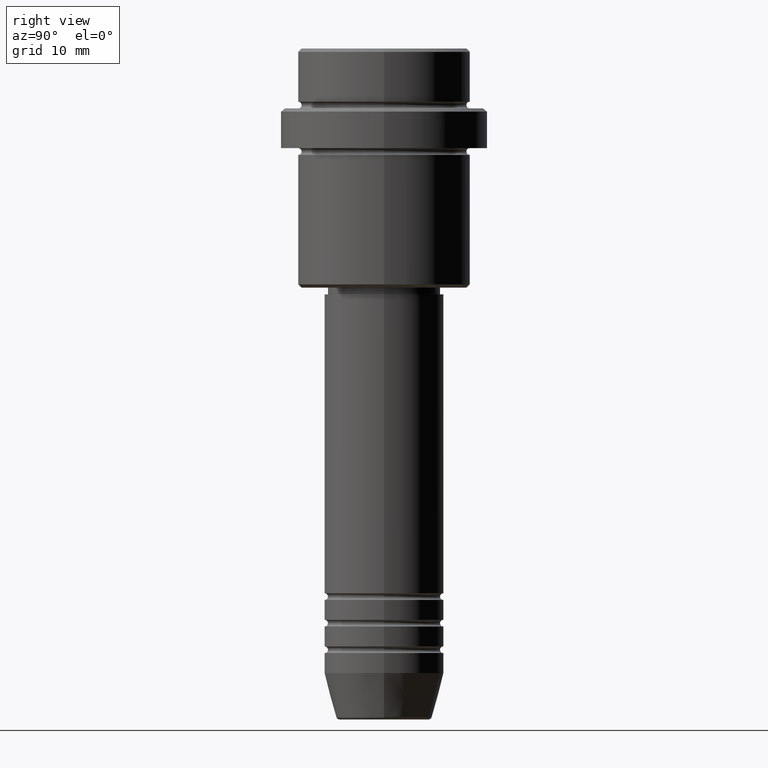
[diagram: clean part render]
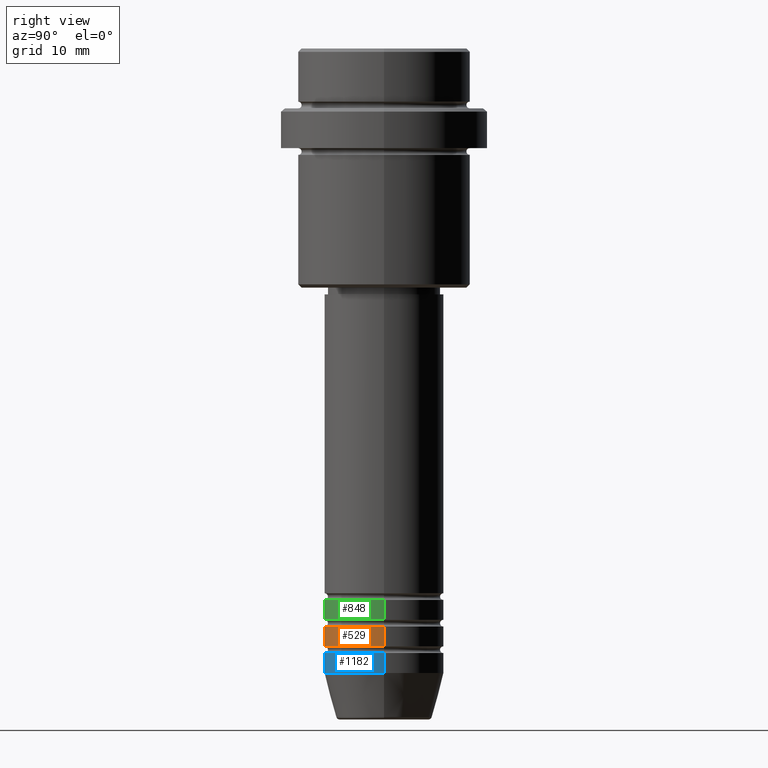
[diagram: same view with three faces highlighted in distinct colors, each labeled with its STEP entity id]
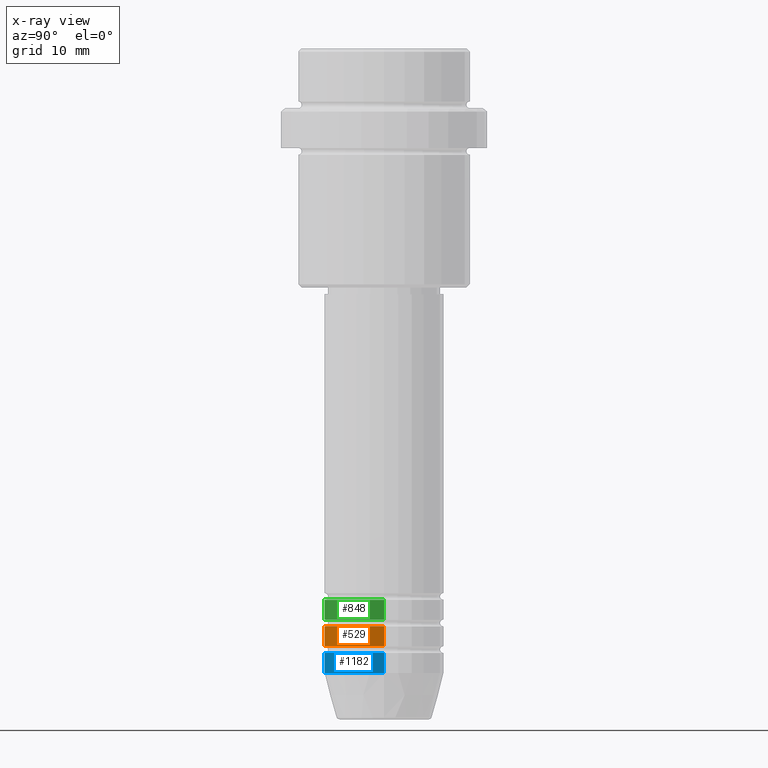
[diagram: x-ray of the same camera — body ghosted, the three highlighted faces saturated]
A machine part, right view with three faces highlighted in distinct colors.
The next image is the same camera in x-ray (body ghosted, the three faces saturated) — at least one of them is partly hidden behind the body in this view.
Their STEP definitions:

[orange] entity #529 — the highlighted cylindrical surface (partial cylindrical patch) has radius 9 mm, axis along (-0, -0, 1).
#34 = EDGE_CURVE ( 'NONE', #860, #1094, #196, .T. ) ;
#161 = DIRECTION ( 'NONE',  ( -0.000000000000000000, -0.000000000000000000, 1.000000000000000000 ) ) ;
#177 = CARTESIAN_POINT ( 'NONE',  ( 9.000000000000000000, 0.000000000000000000, -89.99999999999988631 ) ) ;
#180 = ORIENTED_EDGE ( 'NONE', *, *, #1220, .T. ) ;
#196 = CIRCLE ( 'NONE', #576, 9.000000000000000000 ) ;
#225 = DIRECTION ( 'NONE',  ( 1.000000000000000000, 0.000000000000000000, 0.000000000000000000 ) ) ;
#230 = DIRECTION ( 'NONE',  ( -0.000000000000000000, -0.000000000000000000, 1.000000000000000000 ) ) ;
#256 = DIRECTION ( 'NONE',  ( -0.000000000000000000, -0.000000000000000000, 1.000000000000000000 ) ) ;
#364 = DIRECTION ( 'NONE',  ( 1.000000000000000000, 0.000000000000000000, 0.000000000000000000 ) ) ;
#388 = CARTESIAN_POINT ( 'NONE',  ( 0.000000000000000000, 0.000000000000000000, -86.99999999999988631 ) ) ;
#430 = AXIS2_PLACEMENT_3D ( 'NONE', #664, #230, #225 ) ;
#431 = CIRCLE ( 'NONE', #430, 9.000000000000000000 ) ;
#438 = CYLINDRICAL_SURFACE ( 'NONE', #1082, 9.000000000000000000 ) ;
#529 = ADVANCED_FACE ( 'NONE', ( #1411 ), #438, .T. ) ;
#563 = CARTESIAN_POINT ( 'NONE',  ( -9.000000000000000000, 1.102182119232617714E-15, 0.000000000000000000 ) ) ;
#564 = EDGE_CURVE ( 'NONE', #1047, #1094, #569, .T. ) ;
#569 = LINE ( 'NONE', #1335, #574 ) ;
#574 = VECTOR ( 'NONE', #256, 1000.000000000000000 ) ;
#576 = AXIS2_PLACEMENT_3D ( 'NONE', #388, #161, #364 ) ;
#592 = CARTESIAN_POINT ( 'NONE',  ( -9.000000000000000000, 1.102182119232617714E-15, -89.99999999999988631 ) ) ;
#664 = CARTESIAN_POINT ( 'NONE',  ( 0.000000000000000000, 0.000000000000000000, -89.99999999999988631 ) ) ;
#758 = DIRECTION ( 'NONE',  ( -0.000000000000000000, -0.000000000000000000, 1.000000000000000000 ) ) ;
#788 = EDGE_CURVE ( 'NONE', #915, #860, #1334, .T. ) ;
#859 = CARTESIAN_POINT ( 'NONE',  ( 9.000000000000000000, 0.000000000000000000, -86.99999999999988631 ) ) ;
#860 = VERTEX_POINT ( 'NONE', #998 ) ;
#866 = ORIENTED_EDGE ( 'NONE', *, *, #564, .T. ) ;
#870 = CARTESIAN_POINT ( 'NONE',  ( 0.000000000000000000, 0.000000000000000000, 0.000000000000000000 ) ) ;
#915 = VERTEX_POINT ( 'NONE', #592 ) ;
#932 = ORIENTED_EDGE ( 'NONE', *, *, #34, .F. ) ;
#998 = CARTESIAN_POINT ( 'NONE',  ( -9.000000000000000000, 1.102182119232617714E-15, -86.99999999999988631 ) ) ;
#1009 = DIRECTION ( 'NONE',  ( -0.000000000000000000, -0.000000000000000000, 1.000000000000000000 ) ) ;
#1047 = VERTEX_POINT ( 'NONE', #177 ) ;
#1082 = AXIS2_PLACEMENT_3D ( 'NONE', #870, #758, #1201 ) ;
#1094 = VERTEX_POINT ( 'NONE', #859 ) ;
#1201 = DIRECTION ( 'NONE',  ( 1.000000000000000000, 0.000000000000000000, 0.000000000000000000 ) ) ;
#1220 = EDGE_CURVE ( 'NONE', #915, #1047, #431, .T. ) ;
#1287 = EDGE_LOOP ( 'NONE', ( #1396, #180, #866, #932 ) ) ;
#1334 = LINE ( 'NONE', #563, #1382 ) ;
#1335 = CARTESIAN_POINT ( 'NONE',  ( 9.000000000000000000, 0.000000000000000000, 0.000000000000000000 ) ) ;
#1382 = VECTOR ( 'NONE', #1009, 1000.000000000000000 ) ;
#1396 = ORIENTED_EDGE ( 'NONE', *, *, #788, .F. ) ;
#1411 = FACE_OUTER_BOUND ( 'NONE', #1287, .T. ) ;

[blue] entity #1182 — the highlighted cylindrical surface (partial cylindrical patch) has radius 9 mm, axis along (-0, -0, 1).
#4 = EDGE_CURVE ( 'NONE', #1088, #486, #943, .T. ) ;
#79 = VECTOR ( 'NONE', #604, 1000.000000000000000 ) ;
#92 = ORIENTED_EDGE ( 'NONE', *, *, #409, .T. ) ;
#101 = AXIS2_PLACEMENT_3D ( 'NONE', #1180, #854, #1281 ) ;
#120 = CIRCLE ( 'NONE', #918, 9.000000000000000000 ) ;
#146 = CARTESIAN_POINT ( 'NONE',  ( -9.000000000000000000, 1.102182119232617714E-15, 0.000000000000000000 ) ) ;
#184 = DIRECTION ( 'NONE',  ( -0.000000000000000000, -0.000000000000000000, 1.000000000000000000 ) ) ;
#192 = CARTESIAN_POINT ( 'NONE',  ( 9.000000000000000000, 0.000000000000000000, -94.00000000000000000 ) ) ;
#201 = DIRECTION ( 'NONE',  ( 1.000000000000000000, 0.000000000000000000, 0.000000000000000000 ) ) ;
#239 = ORIENTED_EDGE ( 'NONE', *, *, #377, .F. ) ;
#252 = CARTESIAN_POINT ( 'NONE',  ( -9.000000000000000000, 1.102182119232617714E-15, -94.00000000000000000 ) ) ;
#320 = CARTESIAN_POINT ( 'NONE',  ( 9.000000000000000000, 0.000000000000000000, -91.00000000000000000 ) ) ;
#377 = EDGE_CURVE ( 'NONE', #1318, #486, #120, .T. ) ;
#409 = EDGE_CURVE ( 'NONE', #1352, #1088, #1331, .T. ) ;
#486 = VERTEX_POINT ( 'NONE', #320 ) ;
#488 = CARTESIAN_POINT ( 'NONE',  ( 0.000000000000000000, 0.000000000000000000, -91.00000000000000000 ) ) ;
#497 = EDGE_LOOP ( 'NONE', ( #600, #92, #977, #239 ) ) ;
#600 = ORIENTED_EDGE ( 'NONE', *, *, #942, .F. ) ;
#604 = DIRECTION ( 'NONE',  ( -0.000000000000000000, -0.000000000000000000, 1.000000000000000000 ) ) ;
#608 = DIRECTION ( 'NONE',  ( -0.000000000000000000, -0.000000000000000000, 1.000000000000000000 ) ) ;
#651 = VECTOR ( 'NONE', #1378, 1000.000000000000000 ) ;
#733 = CARTESIAN_POINT ( 'NONE',  ( 0.000000000000000000, 0.000000000000000000, 0.000000000000000000 ) ) ;
#755 = CYLINDRICAL_SURFACE ( 'NONE', #1086, 9.000000000000000000 ) ;
#793 = LINE ( 'NONE', #146, #79 ) ;
#854 = DIRECTION ( 'NONE',  ( -0.000000000000000000, -0.000000000000000000, 1.000000000000000000 ) ) ;
#918 = AXIS2_PLACEMENT_3D ( 'NONE', #488, #608, #1375 ) ;
#942 = EDGE_CURVE ( 'NONE', #1352, #1318, #793, .T. ) ;
#943 = LINE ( 'NONE', #1023, #651 ) ;
#977 = ORIENTED_EDGE ( 'NONE', *, *, #4, .T. ) ;
#1023 = CARTESIAN_POINT ( 'NONE',  ( 9.000000000000000000, 0.000000000000000000, 0.000000000000000000 ) ) ;
#1086 = AXIS2_PLACEMENT_3D ( 'NONE', #733, #184, #201 ) ;
#1088 = VERTEX_POINT ( 'NONE', #192 ) ;
#1169 = CARTESIAN_POINT ( 'NONE',  ( -9.000000000000000000, 1.102182119232617714E-15, -91.00000000000000000 ) ) ;
#1180 = CARTESIAN_POINT ( 'NONE',  ( 0.000000000000000000, 0.000000000000000000, -94.00000000000000000 ) ) ;
#1182 = ADVANCED_FACE ( 'NONE', ( #1398 ), #755, .T. ) ;
#1281 = DIRECTION ( 'NONE',  ( 1.000000000000000000, 0.000000000000000000, 0.000000000000000000 ) ) ;
#1318 = VERTEX_POINT ( 'NONE', #1169 ) ;
#1331 = CIRCLE ( 'NONE', #101, 9.000000000000000000 ) ;
#1352 = VERTEX_POINT ( 'NONE', #252 ) ;
#1375 = DIRECTION ( 'NONE',  ( 1.000000000000000000, 0.000000000000000000, 0.000000000000000000 ) ) ;
#1378 = DIRECTION ( 'NONE',  ( -0.000000000000000000, -0.000000000000000000, 1.000000000000000000 ) ) ;
#1398 = FACE_OUTER_BOUND ( 'NONE', #497, .T. ) ;

[green] entity #848 — the highlighted cylindrical surface (partial cylindrical patch) has radius 9 mm, axis along (-0, -0, 1).
#19 = DIRECTION ( 'NONE',  ( -0.000000000000000000, -0.000000000000000000, 1.000000000000000000 ) ) ;
#114 = FACE_OUTER_BOUND ( 'NONE', #833, .T. ) ;
#130 = DIRECTION ( 'NONE',  ( -0.000000000000000000, -0.000000000000000000, 1.000000000000000000 ) ) ;
#165 = VECTOR ( 'NONE', #417, 1000.000000000000000 ) ;
#210 = ORIENTED_EDGE ( 'NONE', *, *, #670, .T. ) ;
#227 = CYLINDRICAL_SURFACE ( 'NONE', #973, 9.000000000000000000 ) ;
#231 = CARTESIAN_POINT ( 'NONE',  ( 0.000000000000000000, 0.000000000000000000, 0.000000000000000000 ) ) ;
#259 = AXIS2_PLACEMENT_3D ( 'NONE', #776, #130, #900 ) ;
#295 = ORIENTED_EDGE ( 'NONE', *, *, #544, .F. ) ;
#313 = CIRCLE ( 'NONE', #259, 9.000000000000000000 ) ;
#332 = VERTEX_POINT ( 'NONE', #950 ) ;
#340 = DIRECTION ( 'NONE',  ( -0.000000000000000000, -0.000000000000000000, 1.000000000000000000 ) ) ;
#363 = CARTESIAN_POINT ( 'NONE',  ( -9.000000000000000000, 1.102182119232617714E-15, -85.99999999999988631 ) ) ;
#380 = CARTESIAN_POINT ( 'NONE',  ( -9.000000000000000000, 1.102182119232617714E-15, -82.99999999999988631 ) ) ;
#392 = EDGE_CURVE ( 'NONE', #1234, #332, #727, .T. ) ;
#397 = ORIENTED_EDGE ( 'NONE', *, *, #868, .F. ) ;
#417 = DIRECTION ( 'NONE',  ( -0.000000000000000000, -0.000000000000000000, 1.000000000000000000 ) ) ;
#464 = DIRECTION ( 'NONE',  ( 1.000000000000000000, 0.000000000000000000, 0.000000000000000000 ) ) ;
#544 = EDGE_CURVE ( 'NONE', #1035, #332, #1008, .T. ) ;
#552 = DIRECTION ( 'NONE',  ( -0.000000000000000000, -0.000000000000000000, 1.000000000000000000 ) ) ;
#568 = LINE ( 'NONE', #1222, #1332 ) ;
#670 = EDGE_CURVE ( 'NONE', #979, #1234, #313, .T. ) ;
#727 = LINE ( 'NONE', #1163, #165 ) ;
#768 = DIRECTION ( 'NONE',  ( 1.000000000000000000, 0.000000000000000000, 0.000000000000000000 ) ) ;
#776 = CARTESIAN_POINT ( 'NONE',  ( 0.000000000000000000, 0.000000000000000000, -85.99999999999988631 ) ) ;
#833 = EDGE_LOOP ( 'NONE', ( #397, #210, #1409, #295 ) ) ;
#848 = ADVANCED_FACE ( 'NONE', ( #114 ), #227, .T. ) ;
#868 = EDGE_CURVE ( 'NONE', #979, #1035, #568, .T. ) ;
#900 = DIRECTION ( 'NONE',  ( 1.000000000000000000, 0.000000000000000000, 0.000000000000000000 ) ) ;
#950 = CARTESIAN_POINT ( 'NONE',  ( 9.000000000000000000, 0.000000000000000000, -82.99999999999988631 ) ) ;
#973 = AXIS2_PLACEMENT_3D ( 'NONE', #231, #19, #464 ) ;
#979 = VERTEX_POINT ( 'NONE', #363 ) ;
#1008 = CIRCLE ( 'NONE', #1309, 9.000000000000000000 ) ;
#1035 = VERTEX_POINT ( 'NONE', #380 ) ;
#1093 = CARTESIAN_POINT ( 'NONE',  ( 9.000000000000000000, 0.000000000000000000, -85.99999999999988631 ) ) ;
#1163 = CARTESIAN_POINT ( 'NONE',  ( 9.000000000000000000, 0.000000000000000000, 0.000000000000000000 ) ) ;
#1222 = CARTESIAN_POINT ( 'NONE',  ( -9.000000000000000000, 1.102182119232617714E-15, 0.000000000000000000 ) ) ;
#1234 = VERTEX_POINT ( 'NONE', #1093 ) ;
#1309 = AXIS2_PLACEMENT_3D ( 'NONE', #1310, #340, #768 ) ;
#1310 = CARTESIAN_POINT ( 'NONE',  ( 0.000000000000000000, 0.000000000000000000, -82.99999999999988631 ) ) ;
#1332 = VECTOR ( 'NONE', #552, 1000.000000000000000 ) ;
#1409 = ORIENTED_EDGE ( 'NONE', *, *, #392, .T. ) ;